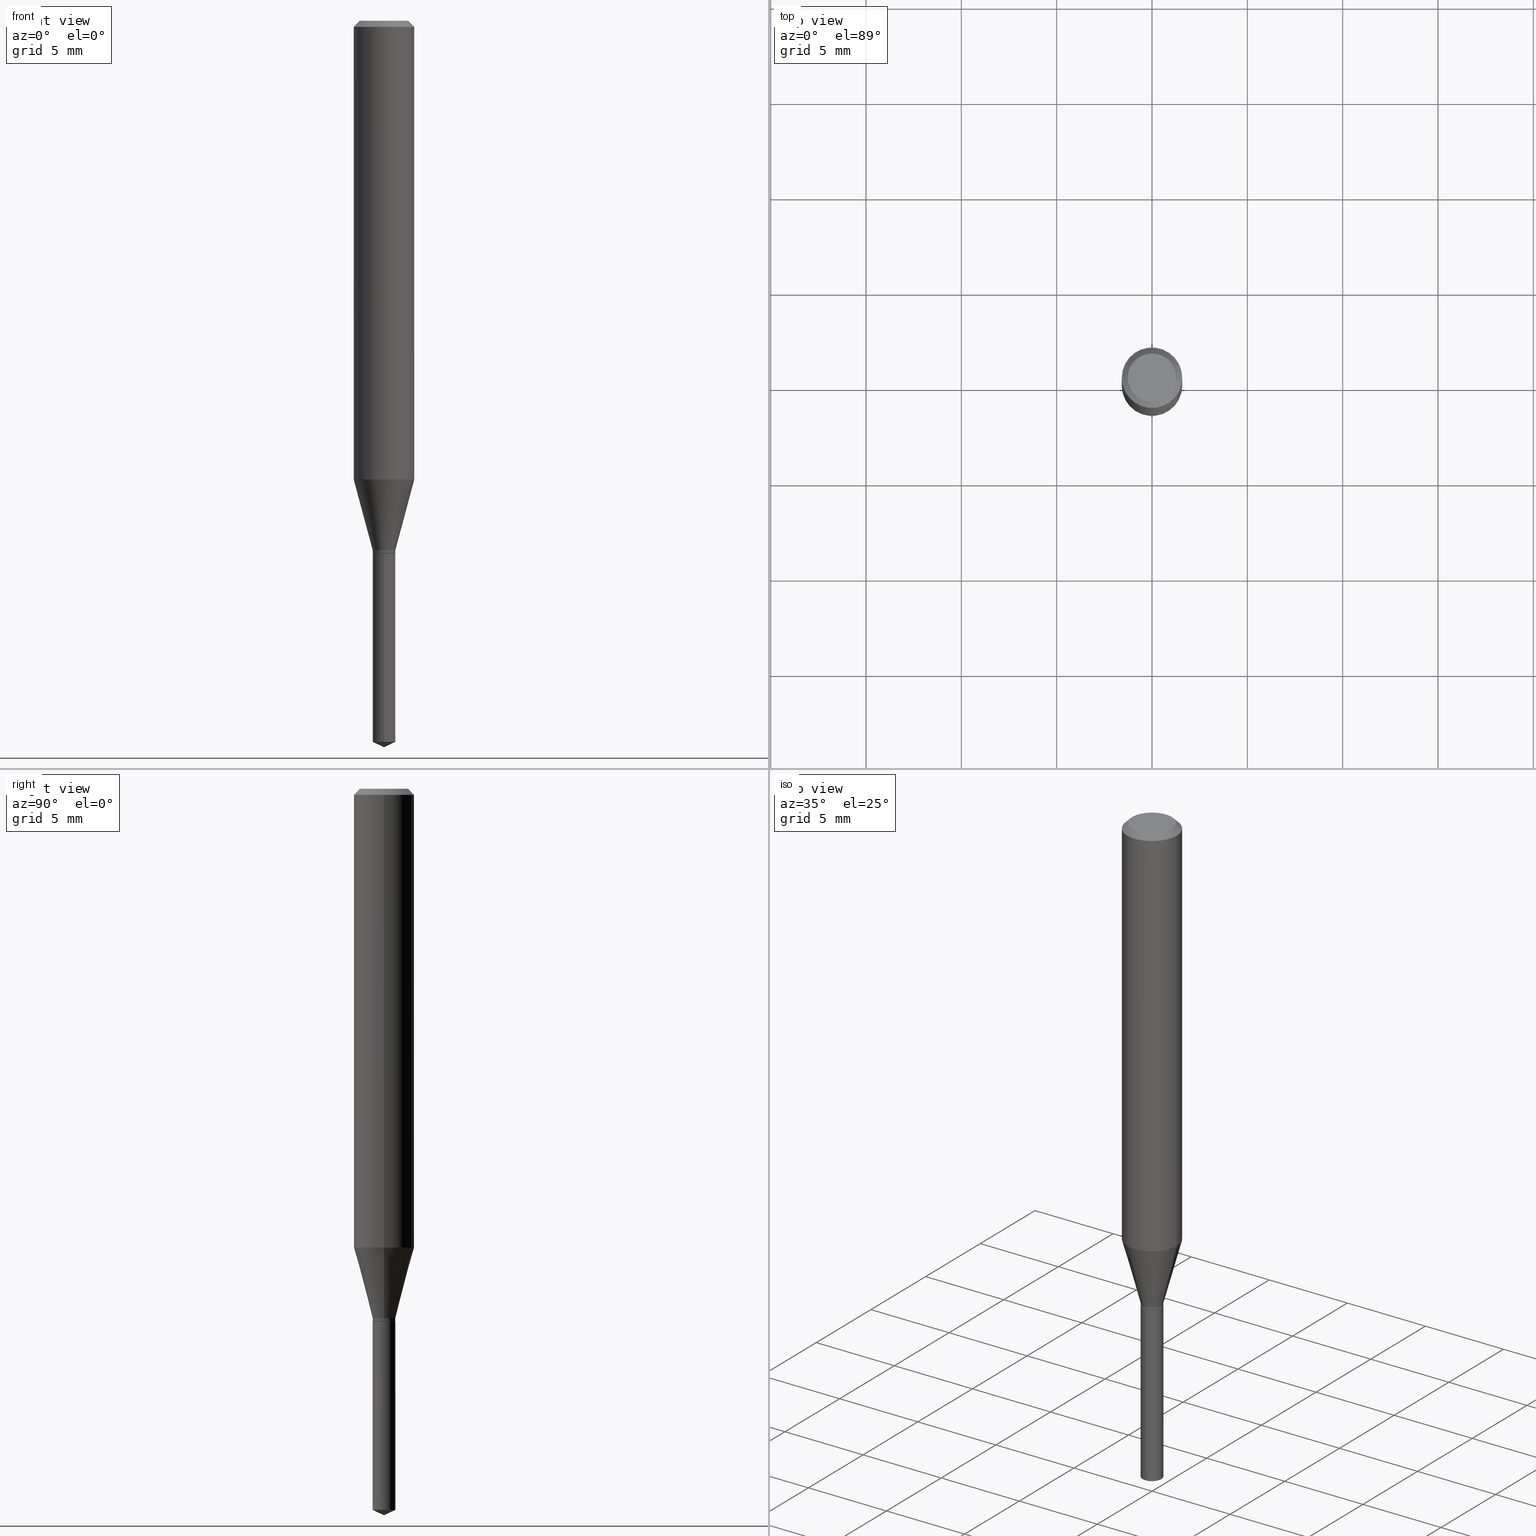
[diagram: canonical four-view strip — front | top / right | iso, engineering-drawing reading convention]
A machine part, canonical four-view strip (front | top / right | iso — engineering-drawing reading convention). The complete STEP part file that produces these views, byte-faithful:
ISO-10303-21;
HEADER;
FILE_DESCRIPTION (( 'STEP AP203' ),
    '1' );
FILE_NAME ('07161.STEP',
    '2024-04-23T19:50:57',
    ( '' ),
    ( '' ),
    'SwSTEP 2.0',
    'SolidWorks 2023',
    '' );
FILE_SCHEMA (( 'CONFIG_CONTROL_DESIGN' ));
ENDSEC;

DATA;
#1 = LINE ( 'NONE', #46, #31 ) ;
#2 = DIRECTION ( 'NONE',  ( 0.7071067811865453523, -7.319954787623248157E-15, -0.7071067811865496822 ) ) ;
#3 = DIRECTION ( 'NONE',  ( -2.445399690415121530E-29, 3.491580316559632610E-15, 1.000000000000000000 ) ) ;
#4 = ADVANCED_BREP_SHAPE_REPRESENTATION ( '07161', ( #417, #88, #257 ), #182 ) ;
#5 = DIRECTION ( 'NONE',  ( 1.000000000000000000, -6.982962677686265922E-15, 0.000000000000000000 ) ) ;
#6 = VECTOR ( 'NONE', #376, 39.37007874015748143 ) ;
#7 = ORIENTED_EDGE ( 'NONE', *, *, #280, .F. ) ;
#8 = AXIS2_PLACEMENT_3D ( 'NONE', #119, #271, #422 ) ;
#9 = APPROVAL_PERSON_ORGANIZATION ( #340, #101, #279 ) ;
#10 = DIRECTION ( 'NONE',  ( -6.982962677686266711E-15, -1.000000000000000000, 5.824835807386488998E-15 ) ) ;
#11 = CARTESIAN_POINT ( 'NONE',  ( 0.02344999999999999862, -3.979939578147301608E-15, -1.092999999999999972 ) ) ;
#12 = DIRECTION ( 'NONE',  ( -2.445399690415121810E-29, 3.491580316559632610E-15, 1.000000000000000000 ) ) ;
#13 = DIRECTION ( 'NONE',  ( 1.000000000000000000, 0.000000000000000000, 0.000000000000000000 ) ) ;
#14 = DIRECTION ( 'NONE',  ( -2.445399690415121530E-29, 3.491580316559632610E-15, 1.000000000000000000 ) ) ;
#15 = CARTESIAN_POINT ( 'NONE',  ( 2.690015686803650369E-29, -3.840629472727460101E-15, -1.100000000000000089 ) ) ;
#16 = CC_DESIGN_PERSON_AND_ORGANIZATION_ASSIGNMENT ( #338, #488, ( #51 ) ) ;
#17 = AXIS2_PLACEMENT_3D ( 'NONE', #354, #282, #168 ) ;
#18 = COORDINATED_UNIVERSAL_TIME_OFFSET ( 5, 0, .BEHIND. ) ;
#19 = FACE_OUTER_BOUND ( 'NONE', #147, .T. ) ;
#20 = PERSON_AND_ORGANIZATION ( #142, #197 ) ;
#21 = DIRECTION ( 'NONE',  ( -2.445399690415121530E-29, 3.491580316559632610E-15, 1.000000000000000000 ) ) ;
#22 = ORIENTED_EDGE ( 'NONE', *, *, #402, .F. ) ;
#23 = PERSON_AND_ORGANIZATION_ROLE ( 'design_supplier' ) ;
#24 = VECTOR ( 'NONE', #48, 39.37007874015748143 ) ;
#25 = SECURITY_CLASSIFICATION ( '', '', #430 ) ;
#26 = ORIENTED_EDGE ( 'NONE', *, *, #123, .T. ) ;
#27 = CONICAL_SURFACE ( 'NONE', #49, 0.06250000000000001388, 0.7853981633974452814 ) ;
#28 = ADVANCED_FACE ( 'NONE', ( #224 ), #27, .T. ) ;
#29 = VERTEX_POINT ( 'NONE', #373 ) ;
#30 = CONICAL_SURFACE ( 'NONE', #134, 0.02344999999999999862, 0.2617993877991500740 ) ;
#31 = VECTOR ( 'NONE', #83, 39.37007874015748854 ) ;
#32 = EDGE_CURVE ( 'NONE', #490, #29, #380, .T. ) ;
#33 = DIRECTION ( 'NONE',  ( -2.445468806185136597E-29, 3.491481338843145583E-15, 1.000000000000000000 ) ) ;
#34 = EDGE_CURVE ( 'NONE', #76, #66, #392, .T. ) ;
#35 = CARTESIAN_POINT ( 'NONE',  ( 0.06250000000000012490, -3.743787707164031297E-15, -0.9472634159644353069 ) ) ;
#36 = ORIENTED_EDGE ( 'NONE', *, *, #483, .T. ) ;
#37 = CIRCLE ( 'NONE', #172, 0.02294999999999999818 ) ;
#38 = CARTESIAN_POINT ( 'NONE',  ( 2.316503134981402038E-29, -3.307352539808638444E-15, -0.9472634159644353069 ) ) ;
#39 = EDGE_LOOP ( 'NONE', ( #231, #58, #235, #136 ) ) ;
#40 = DIRECTION ( 'NONE',  ( -2.445468806185136597E-29, 3.491481338843145583E-15, 1.000000000000000000 ) ) ;
#41 = CARTESIAN_POINT ( 'NONE',  ( 2.688792952400557567E-29, -3.838883732058038598E-15, -1.099499999999999922 ) ) ;
#42 = LINE ( 'NONE', #166, #427 ) ;
#43 = DIRECTION ( 'NONE',  ( 1.000000000000000000, -6.982962677686277755E-15, 0.000000000000000000 ) ) ;
#44 = DIRECTION ( 'NONE',  ( 1.000000000000000000, -6.982962677686277755E-15, 0.000000000000000000 ) ) ;
#45 = CARTESIAN_POINT ( 'NONE',  ( 2.690015686803650369E-29, -3.840629472727460101E-15, -1.100000000000000089 ) ) ;
#46 = CARTESIAN_POINT ( 'NONE',  ( -0.02294999999999999818, -3.677559914870516925E-15, -1.100000000000000089 ) ) ;
#47 = CARTESIAN_POINT ( 'NONE',  ( 3.641435326231919631E-29, -5.199081466827486019E-15, -1.489065085416265699 ) ) ;
#48 = DIRECTION ( 'NONE',  ( -2.445468806185136877E-29, 3.491481338843145188E-15, 1.000000000000000000 ) ) ;
#49 = AXIS2_PLACEMENT_3D ( 'NONE', #163, #305, #72 ) ;
#50 = PERSON_AND_ORGANIZATION_ROLE ( 'design_owner' ) ;
#51 = PRODUCT_DEFINITION ( 'UNKNOWN', '', #249, #221 ) ;
#52 = DIRECTION ( 'NONE',  ( -2.445468806185136597E-29, 3.491481338843145583E-15, 1.000000000000000000 ) ) ;
#53 = DATE_AND_TIME ( #118, #454 ) ;
#54 = DIRECTION ( 'NONE',  ( -2.445468806185136597E-29, 3.491481338843145583E-15, 1.000000000000000000 ) ) ;
#55 = APPROVAL_ROLE ( '' ) ;
#56 = DIRECTION ( 'NONE',  ( 1.000000000000000000, -6.982962677686277755E-15, 0.000000000000000000 ) ) ;
#57 = DATE_TIME_ROLE ( 'classification_date' ) ;
#58 = ORIENTED_EDGE ( 'NONE', *, *, #280, .T. ) ;
#59 = APPROVAL_STATUS ( 'not_yet_approved' ) ;
#60 = VECTOR ( 'NONE', #391, 39.37007874015747433 ) ;
#61 = LOCAL_TIME ( 15, 50, 57.00000000000000000, #18 ) ;
#62 = EDGE_CURVE ( 'NONE', #411, #177, #218, .T. ) ;
#63 = VERTEX_POINT ( 'NONE', #35 ) ;
#64 = APPROVAL ( #160, 'UNSPECIFIED' ) ;
#65 = FACE_OUTER_BOUND ( 'NONE', #153, .T. ) ;
#66 = VERTEX_POINT ( 'NONE', #487 ) ;
#67 = ORIENTED_EDGE ( 'NONE', *, *, #79, .T. ) ;
#68 = ORIENTED_EDGE ( 'NONE', *, *, #120, .T. ) ;
#69 = CIRCLE ( 'NONE', #368, 0.06250000000000001388 ) ;
#70 = VECTOR ( 'NONE', #130, 39.37007874015748143 ) ;
#71 = CC_DESIGN_SECURITY_CLASSIFICATION ( #25, ( #249 ) ) ;
#72 = DIRECTION ( 'NONE',  ( -1.000000000000000000, 6.982962677686265922E-15, 0.000000000000000000 ) ) ;
#73 = EDGE_LOOP ( 'NONE', ( #456, #78 ) ) ;
#74 = EDGE_CURVE ( 'NONE', #216, #139, #248, .T. ) ;
#75 = CYLINDRICAL_SURFACE ( 'NONE', #433, 0.06250000000000006939 ) ;
#76 = VERTEX_POINT ( 'NONE', #258 ) ;
#77 = CARTESIAN_POINT ( 'NONE',  ( 3.056836007731442729E-31, -4.364351673553962300E-17, -0.01250000000000008916 ) ) ;
#78 = ORIENTED_EDGE ( 'NONE', *, *, #34, .T. ) ;
#79 = EDGE_CURVE ( 'NONE', #324, #216, #383, .T. ) ;
#80 = AXIS2_PLACEMENT_3D ( 'NONE', #239, #203, #399 ) ;
#81 = CARTESIAN_POINT ( 'NONE',  ( -0.06250000000000012490, -2.863263329958574645E-15, -0.9472634159644353069 ) ) ;
#82 = VECTOR ( 'NONE', #416, 39.37007874015747433 ) ;
#83 = DIRECTION ( 'NONE',  ( -0.7071067811865232589, 7.493145998870265808E-15, 0.7071067811865715536 ) ) ;
#84 = ORIENTED_EDGE ( 'NONE', *, *, #62, .F. ) ;
#85 = CARTESIAN_POINT ( 'NONE',  ( -1.637504747917160560E-16, -0.02345000000000384277, -1.099999999999999867 ) ) ;
#86 = CARTESIAN_POINT ( 'NONE',  ( 0.02294999999999999818, -4.000888466180360440E-15, -1.100000000000000089 ) ) ;
#87 = LINE ( 'NONE', #237, #370 ) ;
#88 = MANIFOLD_SOLID_BREP ( 'Body-Move/Copy2[2]', #213 ) ;
#89 = CARTESIAN_POINT ( 'NONE',  ( 3.668099535622682715E-29, -5.237370474839449507E-15, -1.500000000000000222 ) ) ;
#90 = DIRECTION ( 'NONE',  ( -2.445468806185136597E-29, 3.491481338843145583E-15, 1.000000000000000000 ) ) ;
#91 = ADVANCED_FACE ( 'NONE', ( #268 ), #30, .T. ) ;
#92 = CARTESIAN_POINT ( 'NONE',  ( 2.690015686803650369E-29, -3.840629472727460101E-15, -1.100000000000000089 ) ) ;
#93 = PLANE ( 'NONE',  #80 ) ;
#94 = PERSON_AND_ORGANIZATION ( #142, #197 ) ;
#95 = LINE ( 'NONE', #272, #24 ) ;
#96 = CIRCLE ( 'NONE', #481, 0.02344999999999999862 ) ;
#97 = APPROVAL_DATE_TIME ( #175, #64 ) ;
#98 = EDGE_CURVE ( 'NONE', #485, #217, #185, .T. ) ;
#99 = PERSON_AND_ORGANIZATION ( #142, #197 ) ;
#100 = VECTOR ( 'NONE', #462, 39.37007874015748143 ) ;
#101 = APPROVAL ( #311, 'UNSPECIFIED' ) ;
#102 = CIRCLE ( 'NONE', #141, 0.02344999999999999862 ) ;
#103 = ORIENTED_EDGE ( 'NONE', *, *, #449, .F. ) ;
#104 = ORIENTED_EDGE ( 'NONE', *, *, #423, .F. ) ;
#105 = CARTESIAN_POINT ( 'NONE',  ( -0.02344999999999999862, 1.666222715357434838E-16, -1.153490278664775476E-30 ) ) ;
#106 = CC_DESIGN_DATE_AND_TIME_ASSIGNMENT ( #132, #57, ( #25 ) ) ;
#107 = UNCERTAINTY_MEASURE_WITH_UNIT (LENGTH_MEASURE( 1.000000000000000082E-05 ), #169, 'distance_accuracy_value', 'NONE');
#108 = AXIS2_PLACEMENT_3D ( 'NONE', #38, #190, #337 ) ;
#109 = AXIS2_PLACEMENT_3D ( 'NONE', #358, #21, #396 ) ;
#110 = DIRECTION ( 'NONE',  ( -2.445468806185136597E-29, 3.491481338843145583E-15, 1.000000000000000000 ) ) ;
#111 = ORIENTED_EDGE ( 'NONE', *, *, #469, .F. ) ;
#112 = CARTESIAN_POINT ( 'NONE',  ( 1.666222715357799440E-16, 0.02344999999999615795, -1.100000000000000089 ) ) ;
#113 = EDGE_LOOP ( 'NONE', ( #26, #67, #298, #360 ) ) ;
#114 = CARTESIAN_POINT ( 'NONE',  ( 2.690015686803650369E-29, -3.840629472727460101E-15, -1.100000000000000089 ) ) ;
#115 = DIRECTION ( 'NONE',  ( -2.445399690415121530E-29, 3.491580316559632610E-15, 1.000000000000000000 ) ) ;
#116 = EDGE_CURVE ( 'NONE', #220, #475, #461, .T. ) ;
#117 = CARTESIAN_POINT ( 'NONE',  ( 2.672897405160354511E-29, -3.816189103355558263E-15, -1.092999999999999972 ) ) ;
#118 = CALENDAR_DATE ( 2024, 23, 4 ) ;
#119 = CARTESIAN_POINT ( 'NONE',  ( 0.000000000000000000, 0.000000000000000000, 0.000000000000000000 ) ) ;
#120 = EDGE_CURVE ( 'NONE', #66, #220, #447, .T. ) ;
#121 = LENGTH_MEASURE_WITH_UNIT ( LENGTH_MEASURE( 0.02539999999999999897 ), #306 );
#122 = LINE ( 'NONE', #171, #100 ) ;
#123 = EDGE_CURVE ( 'NONE', #29, #324, #96, .T. ) ;
#124 = CARTESIAN_POINT ( 'NONE',  ( 3.641435326231919631E-29, -5.199081466827486019E-15, -1.489065085416265699 ) ) ;
#125 = CARTESIAN_POINT ( 'NONE',  ( -0.02294999999999999818, -3.674910687696405723E-15, -1.100000000000000089 ) ) ;
#126 = AXIS2_PLACEMENT_3D ( 'NONE', #458, #316, #133 ) ;
#127 = CONICAL_SURFACE ( 'NONE', #313, 84.42940631927616835, 1.134464013796324222 ) ;
#128 = DIRECTION ( 'NONE',  ( -6.982962677686266711E-15, -1.000000000000000000, 5.824835807386488998E-15 ) ) ;
#129 = LINE ( 'NONE', #401, #70 ) ;
#130 = DIRECTION ( 'NONE',  ( -2.445468806185136877E-29, 3.491481338843145188E-15, 1.000000000000000000 ) ) ;
#131 = FACE_OUTER_BOUND ( 'NONE', #371, .T. ) ;
#132 = DATE_AND_TIME ( #470, #330 ) ;
#133 = DIRECTION ( 'NONE',  ( 1.000000000000000000, -6.982962677686266711E-15, 4.876176775795936353E-29 ) ) ;
#134 = AXIS2_PLACEMENT_3D ( 'NONE', #156, #410, #44 ) ;
#135 = AXIS2_PLACEMENT_3D ( 'NONE', #209, #281, #10 ) ;
#136 = ORIENTED_EDGE ( 'NONE', *, *, #291, .F. ) ;
#137 = CC_DESIGN_PERSON_AND_ORGANIZATION_ASSIGNMENT ( #393, #50, ( #243 ) ) ;
#138 = ORIENTED_EDGE ( 'NONE', *, *, #120, .F. ) ;
#139 = VERTEX_POINT ( 'NONE', #413 ) ;
#140 = CIRCLE ( 'NONE', #204, 0.02344999999999999862 ) ;
#141 = AXIS2_PLACEMENT_3D ( 'NONE', #47, #3, #167 ) ;
#142 = PERSON ( 'UNSPECIFIED', 'UNSPECIFIED', 'UNSPECIFIED', ('UNSPECIFIED'), ('UNSPECIFIED'), ('UNSPECIFIED') ) ;
#143 = ORIENTED_EDGE ( 'NONE', *, *, #449, .T. ) ;
#144 = ORIENTED_EDGE ( 'NONE', *, *, #74, .T. ) ;
#145 = EDGE_LOOP ( 'NONE', ( #262, #143, #365, #138 ) ) ;
#146 = CYLINDRICAL_SURFACE ( 'NONE', #135, 0.02344999999999999862 ) ;
#147 = EDGE_LOOP ( 'NONE', ( #103, #186, #68, #184 ) ) ;
#148 = DIRECTION ( 'NONE',  ( 1.000000000000000000, -6.982962677686276177E-15, 0.000000000000000000 ) ) ;
#149 = FACE_OUTER_BOUND ( 'NONE', #404, .T. ) ;
#150 = AXIS2_PLACEMENT_3D ( 'NONE', #15, #247, #351 ) ;
#151 = CIRCLE ( 'NONE', #362, 0.02344999999999999862 ) ;
#152 = DIRECTION ( 'NONE',  ( -2.445468806185136597E-29, 3.491481338843145583E-15, 1.000000000000000000 ) ) ;
#153 = EDGE_LOOP ( 'NONE', ( #292, #256, #84, #104 ) ) ;
#154 = EDGE_CURVE ( 'NONE', #475, #220, #69, .T. ) ;
#155 = CARTESIAN_POINT ( 'NONE',  ( -1.637504747917064910E-16, -0.02345000000000520279, -1.489065085416265699 ) ) ;
#156 = CARTESIAN_POINT ( 'NONE',  ( 2.672897405160354511E-29, -3.816189103355558263E-15, -1.092999999999999972 ) ) ;
#157 = ADVANCED_FACE ( 'NONE', ( #149 ), #75, .T. ) ;
#158 = DATE_AND_TIME ( #424, #445 ) ;
#159 = FACE_OUTER_BOUND ( 'NONE', #366, .T. ) ;
#160 = APPROVAL_STATUS ( 'not_yet_approved' ) ;
#161 = DIRECTION ( 'NONE',  ( -2.445399690415121530E-29, 3.491580316559632610E-15, 1.000000000000000000 ) ) ;
#162 = VECTOR ( 'NONE', #2, 39.37007874015748143 ) ;
#163 = CARTESIAN_POINT ( 'NONE',  ( 3.056836007731442729E-31, -4.364351673553962300E-17, -0.01250000000000008916 ) ) ;
#164 = EDGE_CURVE ( 'NONE', #66, #76, #319, .T. ) ;
#165 = LINE ( 'NONE', #11, #60 ) ;
#166 = CARTESIAN_POINT ( 'NONE',  ( 3.668099535622682155E-29, -5.237370474839448718E-15, -1.500000000000000222 ) ) ;
#167 = DIRECTION ( 'NONE',  ( -6.982962677686266711E-15, -1.000000000000000000, 0.000000000000000000 ) ) ;
#168 = DIRECTION ( 'NONE',  ( 1.000000000000000000, -6.982962677686264344E-15, 0.000000000000000000 ) ) ;
#169 =( CONVERSION_BASED_UNIT ( 'INCH', #121 ) LENGTH_UNIT ( ) NAMED_UNIT ( #375 ) );
#170 = CARTESIAN_POINT ( 'NONE',  ( 1.946643104841063088E-47, -2.779290439833033990E-33, -7.960204194457798443E-19 ) ) ;
#171 = CARTESIAN_POINT ( 'NONE',  ( 1.666222715357703790E-16, 0.02344999999999615795, -1.100000000000000089 ) ) ;
#172 = AXIS2_PLACEMENT_3D ( 'NONE', #92, #52, #425 ) ;
#173 = CALENDAR_DATE ( 2024, 23, 4 ) ;
#174 = CARTESIAN_POINT ( 'NONE',  ( 2.688792952400557567E-29, -3.838883732058038598E-15, -1.099499999999999922 ) ) ;
#175 = DATE_AND_TIME ( #173, #267 ) ;
#176 = CARTESIAN_POINT ( 'NONE',  ( -9.260740279983036507E-28, 1.322265303911854087E-13, 37.87007874015748143 ) ) ;
#177 = VERTEX_POINT ( 'NONE', #112 ) ;
#178 = CONICAL_SURFACE ( 'NONE', #442, 0.02294999999999999818, 0.7853981633974141952 ) ;
#179 = APPROVAL_PERSON_ORGANIZATION ( #99, #308, #55 ) ;
#180 = EDGE_CURVE ( 'NONE', #63, #183, #471, .T. ) ;
#181 = EDGE_LOOP ( 'NONE', ( #290, #7 ) ) ;
#182 =( GEOMETRIC_REPRESENTATION_CONTEXT ( 3 ) GLOBAL_UNCERTAINTY_ASSIGNED_CONTEXT ( ( #107 ) ) GLOBAL_UNIT_ASSIGNED_CONTEXT ( ( #169, #195, #352 ) ) REPRESENTATION_CONTEXT ( 'NONE', 'WORKASPACE' ) );
#183 = VERTEX_POINT ( 'NONE', #81 ) ;
#184 = ORIENTED_EDGE ( 'NONE', *, *, #116, .T. ) ;
#185 = LINE ( 'NONE', #301, #345 ) ;
#186 = ORIENTED_EDGE ( 'NONE', *, *, #164, .F. ) ;
#187 = CARTESIAN_POINT ( 'NONE',  ( 3.056836007731442729E-31, -4.364351673553962300E-17, -0.01250000000000008916 ) ) ;
#188 = CC_DESIGN_PERSON_AND_ORGANIZATION_ASSIGNMENT ( #20, #317, ( #25 ) ) ;
#189 = ORIENTED_EDGE ( 'NONE', *, *, #116, .F. ) ;
#190 = DIRECTION ( 'NONE',  ( -2.445468806185136597E-29, 3.491481338843145583E-15, 1.000000000000000000 ) ) ;
#191 = ADVANCED_FACE ( 'NONE', ( #450 ), #178, .T. ) ;
#192 = ORIENTED_EDGE ( 'NONE', *, *, #364, .T. ) ;
#193 = DIRECTION ( 'NONE',  ( -2.438088387897960049E-29, 3.491481338843145188E-15, 1.000000000000000000 ) ) ;
#194 = DIRECTION ( 'NONE',  ( 0.7071067811865232589, -2.468850131082003836E-15, 0.7071067811865715536 ) ) ;
#195 =( NAMED_UNIT ( * ) PLANE_ANGLE_UNIT ( ) SI_UNIT ( $, .RADIAN. ) );
#196 = DIRECTION ( 'NONE',  ( -2.445399690415121530E-29, 3.491580316559632610E-15, 1.000000000000000000 ) ) ;
#197 = ORGANIZATION ( 'UNSPECIFIED', 'UNSPECIFIED', '' ) ;
#198 = DIRECTION ( 'NONE',  ( 1.000000000000000000, -6.982962677686256455E-15, 0.000000000000000000 ) ) ;
#199 = CARTESIAN_POINT ( 'NONE',  ( 2.690015686803650369E-29, -3.840629472727460101E-15, -1.100000000000000089 ) ) ;
#200 = FACE_OUTER_BOUND ( 'NONE', #441, .T. ) ;
#201 = CARTESIAN_POINT ( 'NONE',  ( 2.690015686803650369E-29, -3.840629472727460101E-15, -1.100000000000000089 ) ) ;
#202 = PERSON_AND_ORGANIZATION_ROLE ( 'creator' ) ;
#203 = DIRECTION ( 'NONE',  ( 2.445399690415121250E-29, -3.491580316559632610E-15, -1.000000000000000000 ) ) ;
#204 = AXIS2_PLACEMENT_3D ( 'NONE', #174, #90, #198 ) ;
#205 = ADVANCED_FACE ( 'NONE', ( #159 ), #93, .F. ) ;
#206 = CARTESIAN_POINT ( 'NONE',  ( -0.06250000000000001388, -1.231408818422025401E-15, -0.01250000000000008916 ) ) ;
#207 = ADVANCED_FACE ( 'NONE', ( #131 ), #296, .T. ) ;
#208 = EDGE_CURVE ( 'NONE', #217, #177, #122, .T. ) ;
#209 = CARTESIAN_POINT ( 'NONE',  ( 2.690015686803650369E-29, -3.840629472727460101E-15, -1.100000000000000089 ) ) ;
#210 = ORIENTED_EDGE ( 'NONE', *, *, #288, .T. ) ;
#211 = AXIS2_PLACEMENT_3D ( 'NONE', #45, #196, #348 ) ;
#212 = DATE_AND_TIME ( #474, #61 ) ;
#213 = CLOSED_SHELL ( 'NONE', ( #191, #28, #157, #207, #325, #260, #91, #397, #318, #381, #476, #434 ) ) ;
#214 = ORIENTED_EDGE ( 'NONE', *, *, #469, .T. ) ;
#215 = EDGE_LOOP ( 'NONE', ( #286, #36, #250, #264 ) ) ;
#216 = VERTEX_POINT ( 'NONE', #276 ) ;
#217 = VERTEX_POINT ( 'NONE', #431 ) ;
#218 = CIRCLE ( 'NONE', #426, 0.02344999999999999862 ) ;
#219 = DIRECTION ( 'NONE',  ( 1.000000000000000000, -6.982962677686265922E-15, 0.000000000000000000 ) ) ;
#220 = VERTEX_POINT ( 'NONE', #206 ) ;
#221 = DESIGN_CONTEXT ( 'detailed design', #283, 'design' ) ;
#222 = CARTESIAN_POINT ( 'NONE',  ( 2.672897405160354511E-29, -3.816189103355558263E-15, -1.092999999999999972 ) ) ;
#223 = CC_DESIGN_PERSON_AND_ORGANIZATION_ASSIGNMENT ( #315, #23, ( #249 ) ) ;
#224 = FACE_OUTER_BOUND ( 'NONE', #145, .T. ) ;
#225 = ORIENTED_EDGE ( 'NONE', *, *, #226, .T. ) ;
#226 = EDGE_CURVE ( 'NONE', #29, #139, #95, .T. ) ;
#227 = DIRECTION ( 'NONE',  ( -0.7071067811865453523, 2.468850131082234184E-15, -0.7071067811865496822 ) ) ;
#228 = ORIENTED_EDGE ( 'NONE', *, *, #98, .F. ) ;
#229 = CIRCLE ( 'NONE', #17, 0.06250000000000012490 ) ;
#230 = AXIS2_PLACEMENT_3D ( 'NONE', #199, #193, #244 ) ;
#231 = ORIENTED_EDGE ( 'NONE', *, *, #483, .F. ) ;
#232 = DIRECTION ( 'NONE',  ( -2.445468806185136597E-29, 3.491481338843145583E-15, 1.000000000000000000 ) ) ;
#233 = APPLICATION_PROTOCOL_DEFINITION ( 'international standard', 'config_control_design', 1994, #432 ) ;
#234 = CARTESIAN_POINT ( 'NONE',  ( 3.893286209682126177E-47, -5.558580879666067980E-33, -1.592040838891559689E-18 ) ) ;
#235 = ORIENTED_EDGE ( 'NONE', *, *, #32, .T. ) ;
#236 = CARTESIAN_POINT ( 'NONE',  ( 0.06250000000000001388, -4.800786840909313294E-16, -0.01250000000000008916 ) ) ;
#237 = CARTESIAN_POINT ( 'NONE',  ( 0.06250000000000006939, -4.364351673553921624E-16, 3.047610484872463374E-30 ) ) ;
#238 = AXIS2_PLACEMENT_3D ( 'NONE', #201, #40, #148 ) ;
#239 = CARTESIAN_POINT ( 'NONE',  ( 2.690015686803650369E-29, -3.840629472727460101E-15, -1.100000000000000089 ) ) ;
#240 = DIRECTION ( 'NONE',  ( 1.000000000000000000, -6.982962677686266711E-15, 4.876176775795935793E-29 ) ) ;
#241 = FACE_OUTER_BOUND ( 'NONE', #369, .T. ) ;
#242 = FACE_OUTER_BOUND ( 'NONE', #113, .T. ) ;
#243 = PRODUCT ( '07161', '07161', '', ( #453 ) ) ;
#244 = DIRECTION ( 'NONE',  ( 1.000000000000000000, -6.982962677686265922E-15, 4.876176775795935793E-29 ) ) ;
#245 = EDGE_CURVE ( 'NONE', #490, #329, #252, .T. ) ;
#246 = FACE_OUTER_BOUND ( 'NONE', #372, .T. ) ;
#247 = DIRECTION ( 'NONE',  ( -2.445468806185136597E-29, 3.491481338843145583E-15, 1.000000000000000000 ) ) ;
#248 = CIRCLE ( 'NONE', #327, 0.02344999999999999862 ) ;
#249 = PRODUCT_DEFINITION_FORMATION_WITH_SPECIFIED_SOURCE ( 'ANY', '', #243, .NOT_KNOWN. ) ;
#250 = ORIENTED_EDGE ( 'NONE', *, *, #123, .F. ) ;
#251 = EDGE_CURVE ( 'NONE', #139, #63, #165, .T. ) ;
#252 = CIRCLE ( 'NONE', #150, 0.02294999999999999818 ) ;
#253 = CIRCLE ( 'NONE', #266, 0.02344999999999999862 ) ;
#254 = ORIENTED_EDGE ( 'NONE', *, *, #79, .F. ) ;
#255 = DIRECTION ( 'NONE',  ( -2.445468806185136597E-29, 3.491481338843145583E-15, 1.000000000000000000 ) ) ;
#256 = ORIENTED_EDGE ( 'NONE', *, *, #208, .T. ) ;
#257 = AXIS2_PLACEMENT_3D ( 'NONE', #349, #273, #13 ) ;
#258 = CARTESIAN_POINT ( 'NONE',  ( 0.04999999999999999584, -4.077247707424184705E-16, -1.592040838888913461E-18 ) ) ;
#259 = CLOSED_SHELL ( 'NONE', ( #460, #294, #310, #350, #205 ) ) ;
#260 = ADVANCED_FACE ( 'NONE', ( #429 ), #307, .T. ) ;
#261 = DIRECTION ( 'NONE',  ( -6.982962677686266711E-15, -1.000000000000000000, 5.824835807386488998E-15 ) ) ;
#262 = ORIENTED_EDGE ( 'NONE', *, *, #34, .F. ) ;
#263 = DIRECTION ( 'NONE',  ( -2.445468806185136597E-29, 3.491481338843145583E-15, 1.000000000000000000 ) ) ;
#264 = ORIENTED_EDGE ( 'NONE', *, *, #32, .F. ) ;
#265 = PLANE ( 'NONE',  #230 ) ;
#266 = AXIS2_PLACEMENT_3D ( 'NONE', #222, #412, #43 ) ;
#267 = LOCAL_TIME ( 15, 50, 57.00000000000000000, #467 ) ;
#268 = FACE_OUTER_BOUND ( 'NONE', #448, .T. ) ;
#269 = LINE ( 'NONE', #85, #484 ) ;
#270 = CARTESIAN_POINT ( 'NONE',  ( 2.690015686803650369E-29, -3.840629472727460101E-15, -1.100000000000000089 ) ) ;
#271 = DIRECTION ( 'NONE',  ( -2.445468806185136597E-29, 3.491481338843145583E-15, 1.000000000000000000 ) ) ;
#272 = CARTESIAN_POINT ( 'NONE',  ( 0.02344999999999999862, -1.637504747917429512E-16, 1.143463453924147019E-30 ) ) ;
#273 = DIRECTION ( 'NONE',  ( 0.000000000000000000, 0.000000000000000000, 1.000000000000000000 ) ) ;
#274 = CYLINDRICAL_SURFACE ( 'NONE', #444, 0.06250000000000006939 ) ;
#275 = AXIS2_PLACEMENT_3D ( 'NONE', #314, #466, #284 ) ;
#276 = CARTESIAN_POINT ( 'NONE',  ( -0.02344999999999999862, -3.660914146171055144E-15, -1.092999999999999972 ) ) ;
#277 = APPROVAL_PERSON_ORGANIZATION ( #300, #64, #303 ) ;
#278 = LINE ( 'NONE', #344, #82 ) ;
#279 = APPROVAL_ROLE ( '' ) ;
#280 = EDGE_CURVE ( 'NONE', #329, #490, #37, .T. ) ;
#281 = DIRECTION ( 'NONE',  ( -2.445399690415121530E-29, 3.491580316559632610E-15, 1.000000000000000000 ) ) ;
#282 = DIRECTION ( 'NONE',  ( -2.445468806185136597E-29, 3.491481338843145583E-15, 1.000000000000000000 ) ) ;
#283 = APPLICATION_CONTEXT ( 'configuration controlled 3d designs of mechanical parts and assemblies' ) ;
#284 = DIRECTION ( 'NONE',  ( -1.000000000000000000, 6.982962677686265922E-15, 0.000000000000000000 ) ) ;
#285 = ORIENTED_EDGE ( 'NONE', *, *, #423, .T. ) ;
#286 = ORIENTED_EDGE ( 'NONE', *, *, #245, .T. ) ;
#287 = AXIS2_PLACEMENT_3D ( 'NONE', #124, #161, #387 ) ;
#288 = EDGE_CURVE ( 'NONE', #183, #63, #229, .T. ) ;
#289 = EDGE_LOOP ( 'NONE', ( #254, #323, #225, #472 ) ) ;
#290 = ORIENTED_EDGE ( 'NONE', *, *, #245, .F. ) ;
#291 = EDGE_CURVE ( 'NONE', #324, #29, #140, .T. ) ;
#292 = ORIENTED_EDGE ( 'NONE', *, *, #385, .T. ) ;
#293 = DIRECTION ( 'NONE',  ( 6.439704144417054808E-15, 0.9063077870366557098, 0.4226182617406872843 ) ) ;
#294 = ADVANCED_FACE ( 'NONE', ( #246 ), #320, .T. ) ;
#295 = ORIENTED_EDGE ( 'NONE', *, *, #288, .F. ) ;
#296 = CONICAL_SURFACE ( 'NONE', #361, 0.02344999999999999862, 0.2617993877991500740 ) ;
#297 = DIRECTION ( 'NONE',  ( 1.000000000000000000, -6.982962677686265922E-15, 4.875957971899673662E-29 ) ) ;
#298 = ORIENTED_EDGE ( 'NONE', *, *, #436, .F. ) ;
#299 = CARTESIAN_POINT ( 'NONE',  ( -0.06250000000000001388, 3.927916506198521080E-16, -0.01250000000000008916 ) ) ;
#300 = PERSON_AND_ORGANIZATION ( #142, #197 ) ;
#301 = CARTESIAN_POINT ( 'NONE',  ( 3.668252923656895710E-29, -5.237152723863177100E-15, -1.500000000000000222 ) ) ;
#302 = CARTESIAN_POINT ( 'NONE',  ( 0.000000000000000000, 0.000000000000000000, 0.000000000000000000 ) ) ;
#303 = APPROVAL_ROLE ( '' ) ;
#304 = PLANE ( 'NONE',  #347 ) ;
#305 = DIRECTION ( 'NONE',  ( 2.445468806185136597E-29, -3.491481338843145583E-15, -1.000000000000000000 ) ) ;
#306 =( LENGTH_UNIT ( ) NAMED_UNIT ( * ) SI_UNIT ( $, .METRE. ) );
#307 = CYLINDRICAL_SURFACE ( 'NONE', #126, 0.02344999999999999862 ) ;
#308 = APPROVAL ( #59, 'UNSPECIFIED' ) ;
#309 = DIRECTION ( 'NONE',  ( -6.982962677686266711E-15, -1.000000000000000000, 3.520397390770377745E-15 ) ) ;
#310 = ADVANCED_FACE ( 'NONE', ( #200 ), #127, .T. ) ;
#311 = APPROVAL_STATUS ( 'not_yet_approved' ) ;
#312 = DIRECTION ( 'NONE',  ( 2.438088387897960049E-29, -3.491481338843145188E-15, -1.000000000000000000 ) ) ;
#313 = AXIS2_PLACEMENT_3D ( 'NONE', #176, #14, #309 ) ;
#314 = CARTESIAN_POINT ( 'NONE',  ( 3.056836007731442729E-31, -4.364351673553962300E-17, -0.01250000000000008916 ) ) ;
#315 = PERSON_AND_ORGANIZATION ( #142, #197 ) ;
#316 = DIRECTION ( 'NONE',  ( -2.445468806185136597E-29, 3.491481338843145583E-15, 1.000000000000000000 ) ) ;
#317 = PERSON_AND_ORGANIZATION_ROLE ( 'classification_officer' ) ;
#318 = ADVANCED_FACE ( 'NONE', ( #19 ), #379, .T. ) ;
#319 = CIRCLE ( 'NONE', #407, 0.04999999999999999584 ) ;
#320 = CONICAL_SURFACE ( 'NONE', #109, 84.42940631927616835, 1.134464013796324222 ) ;
#321 = ORIENTED_EDGE ( 'NONE', *, *, #98, .T. ) ;
#322 = VECTOR ( 'NONE', #194, 39.37007874015748854 ) ;
#323 = ORIENTED_EDGE ( 'NONE', *, *, #291, .T. ) ;
#324 = VERTEX_POINT ( 'NONE', #459 ) ;
#325 = ADVANCED_FACE ( 'NONE', ( #242 ), #455, .T. ) ;
#326 = ORIENTED_EDGE ( 'NONE', *, *, #62, .T. ) ;
#327 = AXIS2_PLACEMENT_3D ( 'NONE', #117, #110, #408 ) ;
#328 = CONICAL_SURFACE ( 'NONE', #238, 0.02294999999999999818, 0.7853981633974141952 ) ;
#329 = VERTEX_POINT ( 'NONE', #125 ) ;
#330 = LOCAL_TIME ( 15, 50, 57.00000000000000000, #359 ) ;
#331 = ORIENTED_EDGE ( 'NONE', *, *, #154, .F. ) ;
#332 = EDGE_CURVE ( 'NONE', #63, #475, #87, .T. ) ;
#333 = DIRECTION ( 'NONE',  ( -2.445468806185136597E-29, 3.491481338843145583E-15, 1.000000000000000000 ) ) ;
#334 = ORIENTED_EDGE ( 'NONE', *, *, #251, .T. ) ;
#335 = CARTESIAN_POINT ( 'NONE',  ( 0.02294999999999999818, -4.000888466180360440E-15, -1.100000000000000089 ) ) ;
#336 = ORIENTED_EDGE ( 'NONE', *, *, #402, .T. ) ;
#337 = DIRECTION ( 'NONE',  ( 1.000000000000000000, -6.982962677686264344E-15, 0.000000000000000000 ) ) ;
#338 = PERSON_AND_ORGANIZATION ( #142, #197 ) ;
#339 = CARTESIAN_POINT ( 'NONE',  ( 3.893286209682126177E-47, -5.558580879666067980E-33, -1.592040838891559689E-18 ) ) ;
#340 = PERSON_AND_ORGANIZATION ( #142, #197 ) ;
#341 = CARTESIAN_POINT ( 'NONE',  ( 0.06250000000000001388, -4.724246415962604812E-16, -0.01250000000000008916 ) ) ;
#342 = DIRECTION ( 'NONE',  ( -1.000000000000000000, 6.982962677686265922E-15, -4.876176775795935793E-29 ) ) ;
#343 = DIRECTION ( 'NONE',  ( -2.445468806185136597E-29, 3.491481338843145583E-15, 1.000000000000000000 ) ) ;
#344 = CARTESIAN_POINT ( 'NONE',  ( -0.02344999999999999862, -3.649566831819814976E-15, -1.092999999999999972 ) ) ;
#345 = VECTOR ( 'NONE', #293, 39.37007874015748854 ) ;
#346 = COORDINATED_UNIVERSAL_TIME_OFFSET ( 5, 0, .BEHIND. ) ;
#347 = AXIS2_PLACEMENT_3D ( 'NONE', #170, #312, #342 ) ;
#348 = DIRECTION ( 'NONE',  ( -6.982962677686266711E-15, -1.000000000000000000, 5.824835807386488998E-15 ) ) ;
#349 = CARTESIAN_POINT ( 'NONE',  ( 0.000000000000000000, 0.000000000000000000, 0.000000000000000000 ) ) ;
#350 = ADVANCED_FACE ( 'NONE', ( #388 ), #394, .T. ) ;
#351 = DIRECTION ( 'NONE',  ( 1.000000000000000000, -6.982962677686276177E-15, 0.000000000000000000 ) ) ;
#352 =( NAMED_UNIT ( * ) SI_UNIT ( $, .STERADIAN. ) SOLID_ANGLE_UNIT ( ) );
#353 = CARTESIAN_POINT ( 'NONE',  ( 2.672897405160354511E-29, -3.816189103355558263E-15, -1.092999999999999972 ) ) ;
#354 = CARTESIAN_POINT ( 'NONE',  ( 2.316503134981402038E-29, -3.307352539808638444E-15, -0.9472634159644353069 ) ) ;
#355 = CC_DESIGN_APPROVAL ( #308, ( #25 ) ) ;
#356 = SHAPE_DEFINITION_REPRESENTATION ( #465, #4 ) ;
#357 = FACE_OUTER_BOUND ( 'NONE', #73, .T. ) ;
#358 = CARTESIAN_POINT ( 'NONE',  ( -9.260740279983036507E-28, 1.322265303911854087E-13, 37.87007874015748143 ) ) ;
#359 = COORDINATED_UNIVERSAL_TIME_OFFSET ( 5, 0, .BEHIND. ) ;
#360 = ORIENTED_EDGE ( 'NONE', *, *, #226, .F. ) ;
#361 = AXIS2_PLACEMENT_3D ( 'NONE', #353, #54, #56 ) ;
#362 = AXIS2_PLACEMENT_3D ( 'NONE', #270, #115, #128 ) ;
#363 = ORIENTED_EDGE ( 'NONE', *, *, #251, .F. ) ;
#364 = EDGE_CURVE ( 'NONE', #183, #220, #129, .T. ) ;
#365 = ORIENTED_EDGE ( 'NONE', *, *, #154, .T. ) ;
#366 = EDGE_LOOP ( 'NONE', ( #326, #214 ) ) ;
#367 = ORIENTED_EDGE ( 'NONE', *, *, #389, .F. ) ;
#368 = AXIS2_PLACEMENT_3D ( 'NONE', #187, #255, #219 ) ;
#369 = EDGE_LOOP ( 'NONE', ( #374, #210, #435, #189 ) ) ;
#370 = VECTOR ( 'NONE', #428, 39.37007874015748143 ) ;
#371 = EDGE_LOOP ( 'NONE', ( #486, #336, #377, #363 ) ) ;
#372 = EDGE_LOOP ( 'NONE', ( #478, #321, #440 ) ) ;
#373 = CARTESIAN_POINT ( 'NONE',  ( 0.02344999999999999862, -4.002634206849781155E-15, -1.099499999999999922 ) ) ;
#374 = ORIENTED_EDGE ( 'NONE', *, *, #364, .F. ) ;
#375 = DIMENSIONAL_EXPONENTS ( 1.000000000000000000, 0.000000000000000000, 0.000000000000000000, 0.000000000000000000, 0.000000000000000000, 0.000000000000000000, 0.000000000000000000 ) ;
#376 = DIRECTION ( 'NONE',  ( -2.445468806185136877E-29, 3.491481338843145188E-15, 1.000000000000000000 ) ) ;
#377 = ORIENTED_EDGE ( 'NONE', *, *, #180, .F. ) ;
#378 = DIRECTION ( 'NONE',  ( 1.000000000000000000, -6.982962677686266711E-15, 4.876176775795935793E-29 ) ) ;
#379 = CONICAL_SURFACE ( 'NONE', #275, 0.06250000000000001388, 0.7853981633974452814 ) ;
#380 = LINE ( 'NONE', #335, #322 ) ;
#381 = ADVANCED_FACE ( 'NONE', ( #357 ), #304, .F. ) ;
#382 = CARTESIAN_POINT ( 'NONE',  ( -1.637504747917160560E-16, -0.02345000000000384277, -1.099999999999999867 ) ) ;
#383 = LINE ( 'NONE', #105, #6 ) ;
#384 = FACE_OUTER_BOUND ( 'NONE', #39, .T. ) ;
#385 = EDGE_CURVE ( 'NONE', #438, #217, #102, .T. ) ;
#386 = FACE_OUTER_BOUND ( 'NONE', #181, .T. ) ;
#387 = DIRECTION ( 'NONE',  ( -6.982962677686266711E-15, -1.000000000000000000, 0.000000000000000000 ) ) ;
#388 = FACE_OUTER_BOUND ( 'NONE', #409, .T. ) ;
#389 = EDGE_CURVE ( 'NONE', #217, #438, #437, .T. ) ;
#390 = CC_DESIGN_APPROVAL ( #64, ( #249 ) ) ;
#391 = DIRECTION ( 'NONE',  ( 0.2588190451025213501, 1.565188264969621968E-15, 0.9659258262890682012 ) ) ;
#392 = CIRCLE ( 'NONE', #446, 0.04999999999999999584 ) ;
#393 = PERSON_AND_ORGANIZATION ( #142, #197 ) ;
#394 = CYLINDRICAL_SURFACE ( 'NONE', #211, 0.02344999999999999862 ) ;
#395 = APPLICATION_PROTOCOL_DEFINITION ( 'international standard', 'config_control_design', 1994, #283 ) ;
#396 = DIRECTION ( 'NONE',  ( -6.982962677686266711E-15, -1.000000000000000000, 3.520397390770377745E-15 ) ) ;
#397 = ADVANCED_FACE ( 'NONE', ( #241 ), #274, .T. ) ;
#398 = AXIS2_PLACEMENT_3D ( 'NONE', #77, #343, #5 ) ;
#399 = DIRECTION ( 'NONE',  ( 6.982962677686265922E-15, 1.000000000000000000, -3.491580316559632610E-15 ) ) ;
#400 = CC_DESIGN_APPROVAL ( #101, ( #51 ) ) ;
#401 = CARTESIAN_POINT ( 'NONE',  ( -0.06250000000000006939, 4.440892098500631092E-16, -3.074334431409319267E-30 ) ) ;
#402 = EDGE_CURVE ( 'NONE', #216, #183, #278, .T. ) ;
#403 = ORIENTED_EDGE ( 'NONE', *, *, #180, .T. ) ;
#404 = EDGE_LOOP ( 'NONE', ( #403, #192, #331, #477 ) ) ;
#405 = ORIENTED_EDGE ( 'NONE', *, *, #389, .T. ) ;
#406 = ORIENTED_EDGE ( 'NONE', *, *, #473, .T. ) ;
#407 = AXIS2_PLACEMENT_3D ( 'NONE', #339, #420, #297 ) ;
#408 = DIRECTION ( 'NONE',  ( 1.000000000000000000, -6.982962677686277755E-15, 0.000000000000000000 ) ) ;
#409 = EDGE_LOOP ( 'NONE', ( #480, #405, #285, #111 ) ) ;
#410 = DIRECTION ( 'NONE',  ( -2.445468806185136597E-29, 3.491481338843145583E-15, 1.000000000000000000 ) ) ;
#411 = VERTEX_POINT ( 'NONE', #382 ) ;
#412 = DIRECTION ( 'NONE',  ( -2.445468806185136597E-29, 3.491481338843145583E-15, 1.000000000000000000 ) ) ;
#413 = CARTESIAN_POINT ( 'NONE',  ( 0.02344999999999999862, -3.979939578147301608E-15, -1.092999999999999972 ) ) ;
#414 = CC_DESIGN_DATE_AND_TIME_ASSIGNMENT ( #158, #419, ( #51 ) ) ;
#415 = DIRECTION ( 'NONE',  ( -2.445399690415121530E-29, 3.491580316559632610E-15, 1.000000000000000000 ) ) ;
#416 = DIRECTION ( 'NONE',  ( -0.2588190451025213501, 5.211531920934551042E-15, 0.9659258262890682012 ) ) ;
#417 = MANIFOLD_SOLID_BREP ( 'Body-Move/Copy2[1]', #259 ) ;
#418 = VECTOR ( 'NONE', #227, 39.37007874015748143 ) ;
#419 = DATE_TIME_ROLE ( 'creation_date' ) ;
#420 = DIRECTION ( 'NONE',  ( -2.445468806185136597E-29, 3.491481338843145583E-15, 1.000000000000000000 ) ) ;
#421 = DIRECTION ( 'NONE',  ( -6.328713451373398566E-15, -0.9063077870366527122, 0.4226182617406936126 ) ) ;
#422 = DIRECTION ( 'NONE',  ( 1.000000000000000000, -6.982962677686266711E-15, 4.876176775795936353E-29 ) ) ;
#423 = EDGE_CURVE ( 'NONE', #438, #411, #269, .T. ) ;
#424 = CALENDAR_DATE ( 2024, 23, 4 ) ;
#425 = DIRECTION ( 'NONE',  ( 1.000000000000000000, -6.982962677686276177E-15, 0.000000000000000000 ) ) ;
#426 = AXIS2_PLACEMENT_3D ( 'NONE', #443, #415, #261 ) ;
#427 = VECTOR ( 'NONE', #421, 39.37007874015748143 ) ;
#428 = DIRECTION ( 'NONE',  ( -2.445468806185136877E-29, 3.491481338843145188E-15, 1.000000000000000000 ) ) ;
#429 = FACE_OUTER_BOUND ( 'NONE', #289, .T. ) ;
#430 = SECURITY_CLASSIFICATION_LEVEL ( 'unclassified' ) ;
#431 = CARTESIAN_POINT ( 'NONE',  ( 1.666222715357799193E-16, 0.02344999999999480139, -1.489065085416265699 ) ) ;
#432 = APPLICATION_CONTEXT ( 'configuration controlled 3d designs of mechanical parts and assemblies' ) ;
#433 = AXIS2_PLACEMENT_3D ( 'NONE', #482, #152, #378 ) ;
#434 = ADVANCED_FACE ( 'NONE', ( #384 ), #328, .T. ) ;
#435 = ORIENTED_EDGE ( 'NONE', *, *, #332, .T. ) ;
#436 = EDGE_CURVE ( 'NONE', #139, #216, #253, .T. ) ;
#437 = CIRCLE ( 'NONE', #287, 0.02344999999999999862 ) ;
#438 = VERTEX_POINT ( 'NONE', #155 ) ;
#439 = PRODUCT_RELATED_PRODUCT_CATEGORY ( 'detail', '', ( #243 ) ) ;
#440 = ORIENTED_EDGE ( 'NONE', *, *, #385, .F. ) ;
#441 = EDGE_LOOP ( 'NONE', ( #228, #406, #367 ) ) ;
#442 = AXIS2_PLACEMENT_3D ( 'NONE', #114, #263, #489 ) ;
#443 = CARTESIAN_POINT ( 'NONE',  ( 2.690015686803650369E-29, -3.840629472727460101E-15, -1.100000000000000089 ) ) ;
#444 = AXIS2_PLACEMENT_3D ( 'NONE', #302, #232, #240 ) ;
#445 = LOCAL_TIME ( 15, 50, 57.00000000000000000, #457 ) ;
#446 = AXIS2_PLACEMENT_3D ( 'NONE', #234, #33, #452 ) ;
#447 = LINE ( 'NONE', #299, #418 ) ;
#448 = EDGE_LOOP ( 'NONE', ( #22, #144, #334, #295 ) ) ;
#449 = EDGE_CURVE ( 'NONE', #76, #475, #468, .T. ) ;
#450 = FACE_OUTER_BOUND ( 'NONE', #215, .T. ) ;
#451 = APPROVAL_DATE_TIME ( #53, #101 ) ;
#452 = DIRECTION ( 'NONE',  ( 1.000000000000000000, -6.982962677686265922E-15, 4.875957971899673662E-29 ) ) ;
#453 = MECHANICAL_CONTEXT ( 'NONE', #432, 'mechanical' ) ;
#454 = LOCAL_TIME ( 15, 50, 57.00000000000000000, #346 ) ;
#455 = CYLINDRICAL_SURFACE ( 'NONE', #8, 0.02344999999999999862 ) ;
#456 = ORIENTED_EDGE ( 'NONE', *, *, #164, .T. ) ;
#457 = COORDINATED_UNIVERSAL_TIME_OFFSET ( 5, 0, .BEHIND. ) ;
#458 = CARTESIAN_POINT ( 'NONE',  ( 0.000000000000000000, 0.000000000000000000, 0.000000000000000000 ) ) ;
#459 = CARTESIAN_POINT ( 'NONE',  ( -0.02344999999999999862, -3.660914146171055144E-15, -1.099499999999999922 ) ) ;
#460 = ADVANCED_FACE ( 'NONE', ( #65 ), #146, .T. ) ;
#461 = CIRCLE ( 'NONE', #398, 0.06250000000000001388 ) ;
#462 = DIRECTION ( 'NONE',  ( -2.445399690415121810E-29, 3.491580316559632610E-15, 1.000000000000000000 ) ) ;
#463 = APPROVAL_DATE_TIME ( #212, #308 ) ;
#464 = CC_DESIGN_PERSON_AND_ORGANIZATION_ASSIGNMENT ( #94, #202, ( #249 ) ) ;
#465 = PRODUCT_DEFINITION_SHAPE ( 'NONE', 'NONE',  #51 ) ;
#466 = DIRECTION ( 'NONE',  ( 2.445468806185136597E-29, -3.491481338843145583E-15, -1.000000000000000000 ) ) ;
#467 = COORDINATED_UNIVERSAL_TIME_OFFSET ( 5, 0, .BEHIND. ) ;
#468 = LINE ( 'NONE', #341, #162 ) ;
#469 = EDGE_CURVE ( 'NONE', #177, #411, #151, .T. ) ;
#470 = CALENDAR_DATE ( 2024, 23, 4 ) ;
#471 = CIRCLE ( 'NONE', #108, 0.06250000000000012490 ) ;
#472 = ORIENTED_EDGE ( 'NONE', *, *, #74, .F. ) ;
#473 = EDGE_CURVE ( 'NONE', #485, #438, #42, .T. ) ;
#474 = CALENDAR_DATE ( 2024, 23, 4 ) ;
#475 = VERTEX_POINT ( 'NONE', #236 ) ;
#476 = ADVANCED_FACE ( 'NONE', ( #386 ), #265, .F. ) ;
#477 = ORIENTED_EDGE ( 'NONE', *, *, #332, .F. ) ;
#478 = ORIENTED_EDGE ( 'NONE', *, *, #473, .F. ) ;
#479 = DIRECTION ( 'NONE',  ( 1.000000000000000000, -6.982962677686256455E-15, 0.000000000000000000 ) ) ;
#480 = ORIENTED_EDGE ( 'NONE', *, *, #208, .F. ) ;
#481 = AXIS2_PLACEMENT_3D ( 'NONE', #41, #333, #479 ) ;
#482 = CARTESIAN_POINT ( 'NONE',  ( 0.000000000000000000, 0.000000000000000000, 0.000000000000000000 ) ) ;
#483 = EDGE_CURVE ( 'NONE', #329, #324, #1, .T. ) ;
#484 = VECTOR ( 'NONE', #12, 39.37007874015748143 ) ;
#485 = VERTEX_POINT ( 'NONE', #89 ) ;
#486 = ORIENTED_EDGE ( 'NONE', *, *, #436, .T. ) ;
#487 = CARTESIAN_POINT ( 'NONE',  ( -0.04999999999999999584, 3.709698922520826725E-16, -1.592040838894077649E-18 ) ) ;
#488 = PERSON_AND_ORGANIZATION_ROLE ( 'creator' ) ;
#489 = DIRECTION ( 'NONE',  ( 1.000000000000000000, -6.982962677686276177E-15, 0.000000000000000000 ) ) ;
#490 = VERTEX_POINT ( 'NONE', #86 ) ;
ENDSEC;
END-ISO-10303-21;
